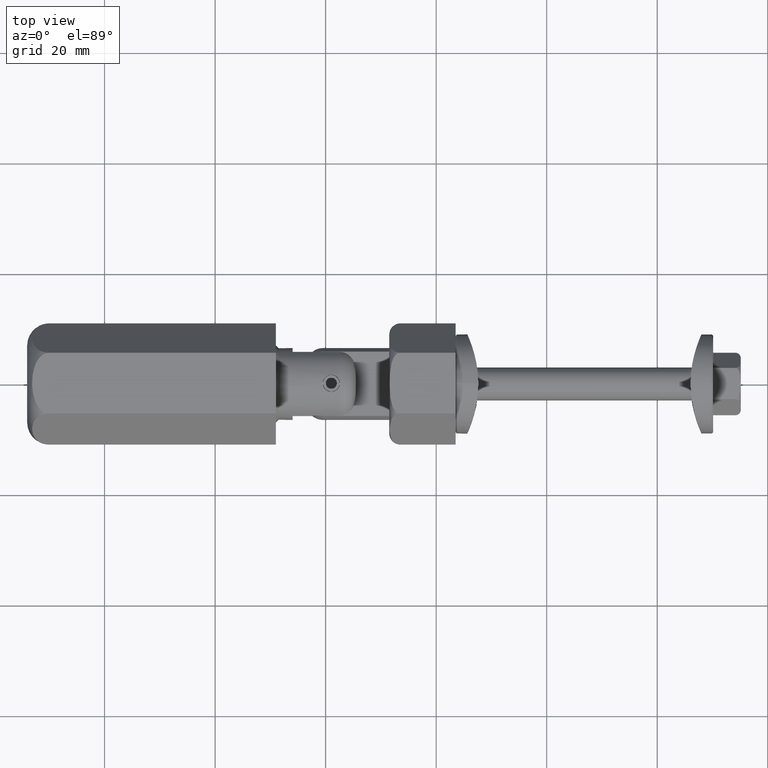
[diagram: clean part render]
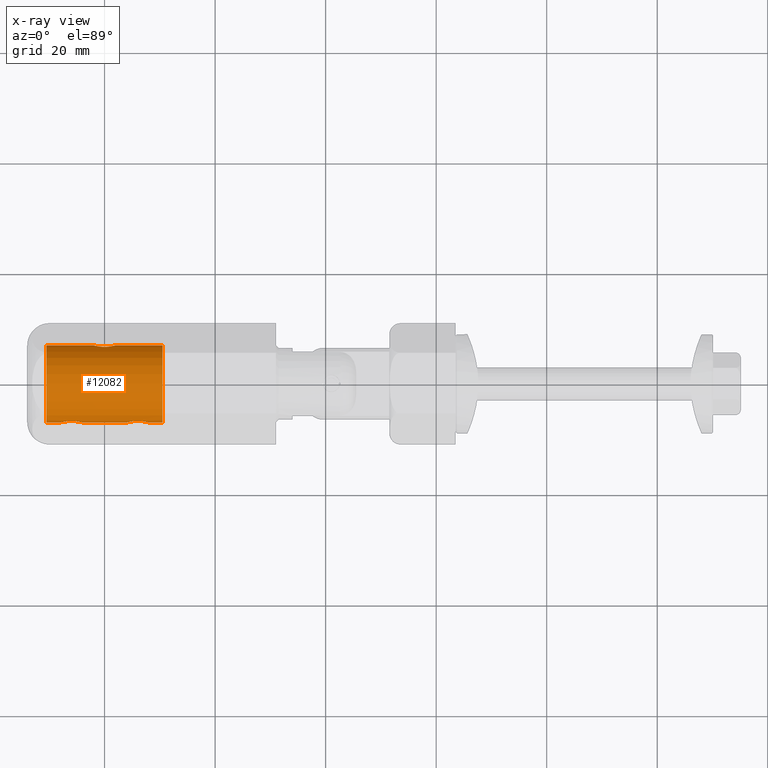
[diagram: x-ray — body ghosted, one internal face saturated and labeled with its STEP entity id]
A machine part, top view, then the same camera in x-ray: the body is ghosted and one INTERNAL B-rep face — a face not visible from any outside direction — is saturated and labeled: STEP entity #12082.
In plain terms, the highlighted cylindrical surface (bore or boss wall) has radius 7 mm, axis along (-1, -0, -0).
Its self-contained STEP definition (entity closure, byte-faithful):
#64 = B_SPLINE_CURVE_WITH_KNOTS ( 'NONE', 3,
 ( #16573, #13607, #16702, #3717, #13855, #8077, #13798, #3780, #863, #12421, #2318, #9523, #15254, #10981, #18156, #5249, #5180, #15315, #6629, #6691, #16034, #11616, #10302, #14570, #2974, #17231, #4251, #17471, #1383, #15972, #8596, #11499, #4428, #17354, #8715, #186, #2844, #18668, #14510, #11675, #13065, #7166, #14328, #7385, #15851, #8834, #7224, #1623, #2785, #8774, #7329, #4489, #17289, #5947, #12880, #15910, #8653, #5712 ),
 .UNSPECIFIED., .T., .F.,
 ( 4, 2, 2, 2, 2, 2, 2, 2, 2, 2, 2, 2, 2, 2, 2, 2, 2, 2, 2, 2, 2, 2, 2, 2, 2, 2, 2, 2, 4 ),
 ( 0.000000000000000000, 0.0004126742208551922885, 0.0008253484417103845771, 0.001238022662565576920, 0.001650696883420769154, 0.002476045325131153840, 0.002888719545986345640, 0.003301393766841537875, 0.003714067987696729242, 0.004126742208551920608, 0.004952090650262305077, 0.005364764871117496878, 0.005777439091972688678, 0.006190113312827882214, 0.006602787533683074014, 0.007428135975393458483, 0.007840810196248651151, 0.008253484417103842952, 0.008666158637959036487, 0.009078832858814228288, 0.009491507079669420088, 0.009904181300524611889, 0.01031685552137980542, 0.01072952974223499722, 0.01155487818394537909, 0.01196755240480057263, 0.01238022662565576443, 0.01279290084651095796, 0.01320557506736614803 ),
 .UNSPECIFIED. ) ;
#186 = CARTESIAN_POINT ( 'NONE',  ( 1.580987759049625296, 6.861527820141791523, -1.388976802186388859 ) ) ;
#247 = CARTESIAN_POINT ( 'NONE',  ( 3.913742813618505512, -6.995841922069899077, 0.2765614229878917141 ) ) ;
#367 = CARTESIAN_POINT ( 'NONE',  ( -7.054102473945778051, -6.759331466220759310, -1.821434604291044090 ) ) ;
#624 = EDGE_LOOP ( 'NONE', ( #5819 ) ) ;
#863 = CARTESIAN_POINT ( 'NONE',  ( -1.388839195446964991, 6.819827703537177044, 1.581028500071543608 ) ) ;
#1195 = CARTESIAN_POINT ( 'NONE',  ( 6.547049372306511295, -6.698588725198423965, -2.032168410949078741 ) ) ;
#1223 = CARTESIAN_POINT ( 'NONE',  ( 11.00000000000000000, 0.000000000000000000, 0.000000000000000000 ) ) ;
#1251 = CARTESIAN_POINT ( 'NONE',  ( 4.166720277408425765, -6.923910792502629086, 1.060908720620473256 ) ) ;
#1313 = CARTESIAN_POINT ( 'NONE',  ( -7.281739775913448121, -6.798550337963386703, -1.669101312122433400 ) ) ;
#1372 = CARTESIAN_POINT ( 'NONE',  ( 5.067132589589898650, -6.741251321833793497, 1.886406131919154960 ) ) ;
#1375 = CARTESIAN_POINT ( 'NONE',  ( -8.099909716981475327, -6.999972915099663240, -0.1392387535875164450 ) ) ;
#1383 = CARTESIAN_POINT ( 'NONE',  ( -0.1384541635934272708, 6.677593114946374087, -2.099940521796471948 ) ) ;
#1507 = B_SPLINE_CURVE_WITH_KNOTS ( 'NONE', 3,
 ( #15722, #12748, #5524, #4546, #8519, #5996, #4180, #8587, #18660, #7441, #2776, #10047, #5580, #9989, #9867, #16090, #247, #17223, #11374, #1251, #2650, #15603, #15779, #15660, #1372, #12690, #2715, #18606, #11485, #9928, #2834, #4240, #17099, #11434, #8460, #7096, #14314, #2594, #12926, #14199, #17163, #7040, #14626, #10355, #11317, #17526, #11258, #18487, #12808, #6975, #17039, #4063, #14260, #8405, #1195, #18549, #7697, #3331 ),
 .UNSPECIFIED., .T., .F.,
 ( 4, 2, 2, 2, 2, 2, 2, 2, 2, 2, 2, 2, 2, 2, 2, 2, 2, 2, 2, 2, 2, 2, 2, 2, 2, 2, 2, 2, 4 ),
 ( 0.000000000000000000, 0.0004126742208551886022, 0.0008253484417103772045, 0.001238022662565565861, 0.001650696883420754409, 0.002476045325131133023, 0.002888719545986322655, 0.003301393766841512287, 0.003714067987696701486, 0.004126742208551891118, 0.004952090650262271250, 0.005364764871117462183, 0.005777439091972653117, 0.006190113312827844917, 0.006602787533683036718, 0.007428135975393417717, 0.007840810196248609518, 0.008253484417103799584, 0.008666158637958993119, 0.009078832858814184920, 0.009491507079669374985, 0.009904181300524566786, 0.01031685552137975859, 0.01072952974223495039, 0.01155487818394533052, 0.01196755240480052405, 0.01238022662565571586, 0.01279290084651090592, 0.01320557506736609946 ),
 .UNSPECIFIED. ) ;
#1623 = CARTESIAN_POINT ( 'NONE',  ( 1.834030624333711668, 6.924122110894418647, 1.058980833297288759 ) ) ;
#1879 = CARTESIAN_POINT ( 'NONE',  ( -3.913478292464586339, -6.995920943411765514, -0.2747175000719830340 ) ) ;
#1968 = DIRECTION ( 'NONE',  ( 0.000000000000000000, 0.000000000000000000, -1.000000000000000000 ) ) ;
#2013 = CARTESIAN_POINT ( 'NONE',  ( -4.165969375666293217, -6.924122110894418647, -1.058980833297288315 ) ) ;
#2109 = AXIS2_PLACEMENT_3D ( 'NONE', #1223, #12776, #12597 ) ;
#2318 = CARTESIAN_POINT ( 'NONE',  ( -1.833738873039429507, 6.924046632502711240, 1.059309639716422557 ) ) ;
#2331 = EDGE_CURVE ( 'NONE', #12857, #12857, #10073, .T. ) ;
#2594 = CARTESIAN_POINT ( 'NONE',  ( 7.820401375943274225, -6.920872669533395971, 1.055791643321307260 ) ) ;
#2650 = CARTESIAN_POINT ( 'NONE',  ( 4.321485710884906517, -6.882702840316381021, 1.291404877913019167 ) ) ;
#2688 = EDGE_LOOP ( 'NONE', ( #16937 ) ) ;
#2712 = ORIENTED_EDGE ( 'NONE', *, *, #3806, .T. ) ;
#2715 = CARTESIAN_POINT ( 'NONE',  ( 5.451066889083135969, -6.698732829926070664, 2.031696179806510294 ) ) ;
#2776 = CARTESIAN_POINT ( 'NONE',  ( 4.166261126960574934, -6.924046632502710352, -1.059309639716417228 ) ) ;
#2785 = CARTESIAN_POINT ( 'NONE',  ( 1.677871059443381663, 6.882583350373726816, 1.291853353502421697 ) ) ;
#2807 = FACE_OUTER_BOUND ( 'NONE', #10565, .T. ) ;
#2820 = CARTESIAN_POINT ( 'NONE',  ( 0.000000000000000000, 6.677574409918619835, 2.100000000000000089 ) ) ;
#2834 = CARTESIAN_POINT ( 'NONE',  ( 6.551977781952515123, -6.695633180687197594, 2.044617356150431942 ) ) ;
#2837 = CARTESIAN_POINT ( 'NONE',  ( -8.032291352580037014, -6.979938631007708949, 0.5465776492337753867 ) ) ;
#2844 = CARTESIAN_POINT ( 'NONE',  ( 1.668743072410852513, 6.882537379490019092, -1.282128590245172228 ) ) ;
#2974 = CARTESIAN_POINT ( 'NONE',  ( -0.9328674104100991293, 6.741251321833790833, -1.886406131919161400 ) ) ;
#3148 = CARTESIAN_POINT ( 'NONE',  ( -6.000000000000000888, -6.677574409918621612, -2.099999999999993427 ) ) ;
#3271 = CARTESIAN_POINT ( 'NONE',  ( -8.086257186381498485, -6.995841922069899965, 0.2765614229878900487 ) ) ;
#3289 = CARTESIAN_POINT ( 'NONE',  ( -10.49999999999999822, 0.000000000000000000, 0.000000000000000000 ) ) ;
#3331 = CARTESIAN_POINT ( 'NONE',  ( 6.000000000000000000, -6.677574409918622500, -2.099999999999992095 ) ) ;
#3401 = CARTESIAN_POINT ( 'NONE',  ( -3.968060145951508577, -6.979836189706141170, 0.5477865613094993202 ) ) ;
#3531 = CARTESIAN_POINT ( 'NONE',  ( -5.860393906624878468, -6.677574409918621612, -2.099999999999994316 ) ) ;
#3717 = CARTESIAN_POINT ( 'NONE',  ( -0.5461640083738057427, 6.698523130148839932, 2.032383107415891565 ) ) ;
#3780 = CARTESIAN_POINT ( 'NONE',  ( -1.281739775913451451, 6.798550337963385815, 1.669101312122439174 ) ) ;
#3806 = EDGE_CURVE ( 'NONE', #6564, #6564, #10963, .T. ) ;
#4063 = CARTESIAN_POINT ( 'NONE',  ( 7.054460413041963918, -6.759387153196886544, -1.821229746319744214 ) ) ;
#4180 = CARTESIAN_POINT ( 'NONE',  ( 4.945897526054222837, -6.759331466220758422, -1.821434604291042980 ) ) ;
#4240 = CARTESIAN_POINT ( 'NONE',  ( 6.931730404932903156, -6.741092463548766567, 1.886972006611055352 ) ) ;
#4251 = CARTESIAN_POINT ( 'NONE',  ( -0.5489331109168636980, 6.698732829926068000, -2.031696179806514735 ) ) ;
#4309 = CARTESIAN_POINT ( 'NONE',  ( -7.677539340235308707, -6.882502496805263270, -1.292270667219473035 ) ) ;
#4428 = CARTESIAN_POINT ( 'NONE',  ( 1.054614965601925469, 6.759414880206073839, -1.821119944981276051 ) ) ;
#4489 = CARTESIAN_POINT ( 'NONE',  ( 1.054460413041965250, 6.759387153196884768, 1.821229746319750875 ) ) ;
#4546 = CARTESIAN_POINT ( 'NONE',  ( 5.453835991626197810, -6.698523130148844373, -2.032383107415884904 ) ) ;
#4742 = CARTESIAN_POINT ( 'NONE',  ( -5.725806950029170395, -6.677537183880286165, 2.100118371269690698 ) ) ;
#4804 = CARTESIAN_POINT ( 'NONE',  ( -3.967369288221169299, -6.980037580193778624, -0.5453942889284638662 ) ) ;
#4931 = CARTESIAN_POINT ( 'NONE',  ( -4.008013125288417910, -6.968169911155557728, 0.6791295441243295761 ) ) ;
#5004 = CARTESIAN_POINT ( 'NONE',  ( -5.318888449927635875, -6.711044336603226412, -1.991205123072984806 ) ) ;
#5180 = CARTESIAN_POINT ( 'NONE',  ( -2.086257186381502038, 6.995841922069899965, -0.2765614229878923802 ) ) ;
#5249 = CARTESIAN_POINT ( 'NONE',  ( -2.100089391378389347, 7.000026817408323332, -0.1365020080210981035 ) ) ;
#5524 = CARTESIAN_POINT ( 'NONE',  ( 5.723292098759246826, -6.681952129707695143, -2.086218818039787148 ) ) ;
#5580 = CARTESIAN_POINT ( 'NONE',  ( 3.967908700146568268, -6.979879823518936099, -0.5475077828909575839 ) ) ;
#5646 = CARTESIAN_POINT ( 'NONE',  ( -5.448022218047483989, -6.695633180687199371, 2.044617356150433274 ) ) ;
#5712 = CARTESIAN_POINT ( 'NONE',  ( -5.421010862427522170E-17, 6.677574409918619835, 2.100000000000000089 ) ) ;
#5722 = CARTESIAN_POINT ( 'NONE',  ( 10.49999999999999822, 0.000000000000000000, 0.000000000000000000 ) ) ;
#5819 = ORIENTED_EDGE ( 'NONE', *, *, #16674, .T. ) ;
#5947 = CARTESIAN_POINT ( 'NONE',  ( 0.6811115500723706750, 6.711044336603225524, 1.991205123072990357 ) ) ;
#5996 = CARTESIAN_POINT ( 'NONE',  ( 5.066177455833113186, -6.741375497718145482, -1.885969007355515537 ) ) ;
#6065 = CARTESIAN_POINT ( 'NONE',  ( -8.032091299853432176, -6.979879823518932547, -0.5475077828909588051 ) ) ;
#6564 = VERTEX_POINT ( 'NONE', #11078 ) ;
#6629 = CARTESIAN_POINT ( 'NONE',  ( -1.992370873320147728, 6.968281583516250599, -0.6779150144627420493 ) ) ;
#6691 = CARTESIAN_POINT ( 'NONE',  ( -1.833279722591579119, 6.923910792502629086, -1.060908720620477252 ) ) ;
#6975 = CARTESIAN_POINT ( 'NONE',  ( 7.389167496165471860, -6.819894566859789009, -1.580742788174470670 ) ) ;
#7004 = CARTESIAN_POINT ( 'NONE',  ( -6.000000000000000000, -6.677574409918621612, -2.099999999999993427 ) ) ;
#7040 = CARTESIAN_POINT ( 'NONE',  ( 8.085965238734301508, -6.995754758556704367, 0.2785654501442211828 ) ) ;
#7096 = CARTESIAN_POINT ( 'NONE',  ( 7.580987759049617303, -6.861527820141792411, 1.388976802186387971 ) ) ;
#7100 = CARTESIAN_POINT ( 'NONE',  ( -4.945385034398080748, -6.759414880206078280, 1.821119944981272054 ) ) ;
#7158 = CARTESIAN_POINT ( 'NONE',  ( -6.276707901240754950, -6.681952129707695143, -2.086218818039788037 ) ) ;
#7166 = CARTESIAN_POINT ( 'NONE',  ( 2.085965238734308169, 6.995754758556705255, -0.2785654501442186848 ) ) ;
#7224 = CARTESIAN_POINT ( 'NONE',  ( 1.991792245267931971, 6.968119259685876976, 0.6793679678655472065 ) ) ;
#7329 = CARTESIAN_POINT ( 'NONE',  ( 1.282117231908432187, 6.798621369107634926, 1.668813936661602604 ) ) ;
#7385 = CARTESIAN_POINT ( 'NONE',  ( 2.100037816497455356, 7.000011344948850578, 0.1378475233690338031 ) ) ;
#7441 = CARTESIAN_POINT ( 'NONE',  ( 4.322460659764697510, -6.882502496805258829, -1.292270667219473035 ) ) ;
#7506 = CARTESIAN_POINT ( 'NONE',  ( -7.387722743610349418, -6.819591003532936568, 1.582090320187760746 ) ) ;
#7566 = CARTESIAN_POINT ( 'NONE',  ( -7.678514289115095259, -6.882702840316382797, 1.291404877913020499 ) ) ;
#7697 = CARTESIAN_POINT ( 'NONE',  ( 6.139606093375124196, -6.677574409918623388, -2.099999999999992983 ) ) ;
#7700 = CARTESIAN_POINT ( 'NONE',  ( -4.331256927589153705, -6.882537379490016427, 1.282128590245168898 ) ) ;
#7766 = CARTESIAN_POINT ( 'NONE',  ( -4.179598624056727552, -6.920872669533395083, 1.055791643321302820 ) ) ;
#7785 = FACE_BOUND ( 'NONE', #624, .T. ) ;
#7827 = CARTESIAN_POINT ( 'NONE',  ( -5.065685123534970913, -6.741449950314553519, -1.885700532271817664 ) ) ;
#7935 = CIRCLE ( 'NONE', #11356, 7.000000000000000000 ) ;
#8046 = AXIS2_PLACEMENT_3D ( 'NONE', #5722, #15803, #14645 ) ;
#8077 = CARTESIAN_POINT ( 'NONE',  ( -0.9338225441668903670, 6.741375497718142817, 1.885969007355523752 ) ) ;
#8405 = CARTESIAN_POINT ( 'NONE',  ( 6.681111550072365013, -6.711044336603223748, -1.991205123072982586 ) ) ;
#8460 = CARTESIAN_POINT ( 'NONE',  ( 7.387073078795813430, -6.819458443178253226, 1.582658246544896397 ) ) ;
#8519 = CARTESIAN_POINT ( 'NONE',  ( 5.320050044645565634, -6.710920279591074511, -1.991625391210247731 ) ) ;
#8587 = CARTESIAN_POINT ( 'NONE',  ( 4.718260224086554544, -6.798550337963387591, -1.669101312122432956 ) ) ;
#8589 = CARTESIAN_POINT ( 'NONE',  ( -7.388839195446962549, -6.819827703537179708, -1.581028500071539611 ) ) ;
#8596 = CARTESIAN_POINT ( 'NONE',  ( 0.5519777819525226725, 6.695633180687202035, -2.044617356150437271 ) ) ;
#8653 = CARTESIAN_POINT ( 'NONE',  ( 0.1396060933751213928, 6.677574409918622500, 2.100000000000000533 ) ) ;
#8715 = CARTESIAN_POINT ( 'NONE',  ( 1.387073078795818981, 6.819458443178254115, -1.582658246544897951 ) ) ;
#8774 = CARTESIAN_POINT ( 'NONE',  ( 1.389167496165476967, 6.819894566859787233, 1.580742788174476221 ) ) ;
#8834 = CARTESIAN_POINT ( 'NONE',  ( 2.032630711778836030, 6.980037580193776847, 0.5453942889284653095 ) ) ;
#8888 = CARTESIAN_POINT ( 'NONE',  ( -7.992370873320142621, -6.968281583516251487, 0.6779150144627383856 ) ) ;
#8949 = CARTESIAN_POINT ( 'NONE',  ( -6.932867410410098685, -6.741251321833791721, 1.886406131919154738 ) ) ;
#9012 = CARTESIAN_POINT ( 'NONE',  ( -6.277815526606130625, -6.681981400250368353, 2.086129300996892422 ) ) ;
#9274 = CARTESIAN_POINT ( 'NONE',  ( -3.899962183502552637, -7.000011344948850578, -0.1378475233690331647 ) ) ;
#9339 = CARTESIAN_POINT ( 'NONE',  ( -4.612926921204187458, -6.819458443178253226, 1.582658246544895064 ) ) ;
#9523 = CARTESIAN_POINT ( 'NONE',  ( -1.991305647251499389, 6.967980629954404037, 0.6807243282322894551 ) ) ;
#9528 = EDGE_CURVE ( 'NONE', #11306, #11306, #64, .T. ) ;
#9867 = CARTESIAN_POINT ( 'NONE',  ( 3.900090283018523785, -6.999972915099665904, -0.1392387535875160842 ) ) ;
#9928 = CARTESIAN_POINT ( 'NONE',  ( 6.274193049970834046, -6.677537183880287053, 2.100118371269692474 ) ) ;
#9989 = CARTESIAN_POINT ( 'NONE',  ( 3.913625261481289197, -6.995876417530238811, -0.2760439706589809528 ) ) ;
#9992 = CARTESIAN_POINT ( 'NONE',  ( -7.991305647251489397, -6.967980629954403149, -0.6807243282322875677 ) ) ;
#10047 = CARTESIAN_POINT ( 'NONE',  ( 4.008694352748508827, -6.967980629954405813, -0.6807243282322863465 ) ) ;
#10050 = CARTESIAN_POINT ( 'NONE',  ( -7.833738873039423289, -6.924046632502709464, -1.059309639716419449 ) ) ;
#10073 = B_SPLINE_CURVE_WITH_KNOTS ( 'NONE', 3,
 ( #3148, #13238, #7158, #14690, #14750, #11926, #367, #1313, #8589, #4309, #10050, #9992, #6065, #14381, #1375, #17529, #3271, #2837, #8888, #11488, #7566, #7506, #12929, #17594, #8949, #16092, #17656, #9012, #13363, #4742, #5646, #15725, #7100, #17165, #9339, #10681, #7700, #7766, #14814, #4931, #3401, #10805, #13421, #9274, #1879, #4804, #16457, #2013, #12123, #12254, #14880, #11995, #7827, #5004, #15005, #16395, #3531, #10741 ),
 .UNSPECIFIED., .T., .F.,
 ( 4, 2, 2, 2, 2, 2, 2, 2, 2, 2, 2, 2, 2, 2, 2, 2, 2, 2, 2, 2, 2, 2, 2, 2, 2, 2, 2, 2, 4 ),
 ( 0.000000000000000000, 0.0004126742208551906622, 0.0008253484417103813245, 0.001238022662565571932, 0.001650696883420762649, 0.002476045325131142130, 0.002888719545986332196, 0.003301393766841521828, 0.003714067987696711461, 0.004126742208551901527, 0.004952090650262280791, 0.005364764871117470857, 0.005777439091972661790, 0.006190113312827852723, 0.006602787533683043657, 0.007428135975393424656, 0.007840810196248614722, 0.008253484417103806522, 0.008666158637958996588, 0.009078832858814186654, 0.009491507079669378455, 0.009904181300524568521, 0.01031685552137975859, 0.01072952974223495039, 0.01155487818394533225, 0.01196755240480052405, 0.01238022662565571759, 0.01279290084651090939, 0.01320557506736610119 ),
 .UNSPECIFIED. ) ;
#10302 = CARTESIAN_POINT ( 'NONE',  ( -1.282575759818664451, 6.798714871150503214, -1.668422950748254641 ) ) ;
#10355 = CARTESIAN_POINT ( 'NONE',  ( 8.100037816497447807, -7.000011344948851466, -0.1378475233690319157 ) ) ;
#10445 = ORIENTED_EDGE ( 'NONE', *, *, #18308, .T. ) ;
#10565 = EDGE_LOOP ( 'NONE', ( #2712 ) ) ;
#10638 = DIRECTION ( 'NONE',  ( 1.000000000000000000, -0.000000000000000000, -0.000000000000000000 ) ) ;
#10681 = CARTESIAN_POINT ( 'NONE',  ( -4.419012240950379145, -6.861527820141795964, 1.388976802186384640 ) ) ;
#10741 = CARTESIAN_POINT ( 'NONE',  ( -6.000000000000000888, -6.677574409918621612, -2.099999999999993427 ) ) ;
#10805 = CARTESIAN_POINT ( 'NONE',  ( -3.914034761265700268, -6.995754758556705255, 0.2785654501442183517 ) ) ;
#10963 = CIRCLE ( 'NONE', #8046, 7.000000000000000000 ) ;
#10981 = CARTESIAN_POINT ( 'NONE',  ( -2.086374738518715688, 6.995876417530237035, 0.2760439706589819520 ) ) ;
#11078 = CARTESIAN_POINT ( 'NONE',  ( 10.49999999999999822, 0.000000000000000000, -7.000000000000000000 ) ) ;
#11258 = CARTESIAN_POINT ( 'NONE',  ( 7.991792245267925310, -6.968119259685876976, -0.6793679678655463183 ) ) ;
#11306 = VERTEX_POINT ( 'NONE', #2820 ) ;
#11317 = CARTESIAN_POINT ( 'NONE',  ( 8.086521707535418102, -6.995920943411771731, -0.2747175000719819793 ) ) ;
#11356 = AXIS2_PLACEMENT_3D ( 'NONE', #3289, #10638, #1968 ) ;
#11374 = CARTESIAN_POINT ( 'NONE',  ( 4.007629126679858267, -6.968281583516251487, 0.6779150144627406060 ) ) ;
#11434 = CARTESIAN_POINT ( 'NONE',  ( 7.281828467040685204, -6.798570512688357326, 1.669013589149068055 ) ) ;
#11485 = CARTESIAN_POINT ( 'NONE',  ( 5.861545836406570231, -6.677593114946377639, 2.099940521796466619 ) ) ;
#11488 = CARTESIAN_POINT ( 'NONE',  ( -7.833279722591575123, -6.923910792502629974, 1.060908720620472367 ) ) ;
#11499 = CARTESIAN_POINT ( 'NONE',  ( 0.9317304049329089288, 6.741092463548765679, -1.886972006611058683 ) ) ;
#11616 = CARTESIAN_POINT ( 'NONE',  ( -1.387722743610353415, 6.819591003532936568, -1.582090320187766519 ) ) ;
#11675 = CARTESIAN_POINT ( 'NONE',  ( 1.991986874711585198, 6.968169911155557728, -0.6791295441243324627 ) ) ;
#11926 = CARTESIAN_POINT ( 'NONE',  ( -6.933822544166884150, -6.741375497718142817, -1.885969007355516647 ) ) ;
#11995 = CARTESIAN_POINT ( 'NONE',  ( -4.945539586958037859, -6.759387153196886544, -1.821229746319744658 ) ) ;
#12082 = ADVANCED_FACE ( 'NONE', ( #13636, #7785, #12966, #13172, #2807 ), #17930, .T. ) ;
#12100 = EDGE_LOOP ( 'NONE', ( #15296 ) ) ;
#12123 = CARTESIAN_POINT ( 'NONE',  ( -4.322128940556623888, -6.882583350373733033, -1.291853353502417256 ) ) ;
#12254 = CARTESIAN_POINT ( 'NONE',  ( -4.610832503834529028, -6.819894566859790785, -1.580742788174470892 ) ) ;
#12421 = CARTESIAN_POINT ( 'NONE',  ( -1.677539340235310705, 6.882502496805260606, 1.292270667219477476 ) ) ;
#12597 = DIRECTION ( 'NONE',  ( 0.000000000000000000, 0.000000000000000000, 1.000000000000000000 ) ) ;
#12649 = VERTEX_POINT ( 'NONE', #12916 ) ;
#12690 = CARTESIAN_POINT ( 'NONE',  ( 5.320132335858051675, -6.710920042696560728, 1.991619858105860619 ) ) ;
#12748 = CARTESIAN_POINT ( 'NONE',  ( 5.860393906624878468, -6.677574409918621612, -2.099999999999991207 ) ) ;
#12776 = DIRECTION ( 'NONE',  ( -1.000000000000000000, -0.000000000000000000, -0.000000000000000000 ) ) ;
#12808 = CARTESIAN_POINT ( 'NONE',  ( 7.677871059443378776, -6.882583350373733921, -1.291853353502417034 ) ) ;
#12857 = VERTEX_POINT ( 'NONE', #7004 ) ;
#12880 = CARTESIAN_POINT ( 'NONE',  ( 0.5470493723065145142, 6.698588725198425742, 2.032168410949085846 ) ) ;
#12916 = CARTESIAN_POINT ( 'NONE',  ( -10.49999999999999822, 0.000000000000000000, -7.000000000000000000 ) ) ;
#12926 = CARTESIAN_POINT ( 'NONE',  ( 7.885391892066941466, -6.938449595434287964, 0.9351609808230740839 ) ) ;
#12929 = CARTESIAN_POINT ( 'NONE',  ( -7.282575759818663563, -6.798714871150506767, 1.668422950748249090 ) ) ;
#12966 = FACE_BOUND ( 'NONE', #12100, .T. ) ;
#13065 = CARTESIAN_POINT ( 'NONE',  ( 2.031939854048501193, 6.979836189706141170, -0.5477865613095009856 ) ) ;
#13172 = FACE_OUTER_BOUND ( 'NONE', #16351, .T. ) ;
#13238 = CARTESIAN_POINT ( 'NONE',  ( -6.139606093375122420, -6.677574409918621612, -2.099999999999992983 ) ) ;
#13299 = VERTEX_POINT ( 'NONE', #14491 ) ;
#13363 = CARTESIAN_POINT ( 'NONE',  ( -6.138454163593429769, -6.677593114946377639, 2.099940521796465731 ) ) ;
#13421 = CARTESIAN_POINT ( 'NONE',  ( -3.900037973886521847, -6.999988607834431775, 0.1389973355850002701 ) ) ;
#13607 = CARTESIAN_POINT ( 'NONE',  ( -0.1396060933751220035, 6.677574409918618059, 2.100000000000000089 ) ) ;
#13636 = FACE_BOUND ( 'NONE', #2688, .T. ) ;
#13798 = CARTESIAN_POINT ( 'NONE',  ( -1.054102473945782270, 6.759331466220757534, 1.821434604291050308 ) ) ;
#13855 = CARTESIAN_POINT ( 'NONE',  ( -0.6799499553544379182, 6.710920279591073623, 1.991625391210255502 ) ) ;
#14199 = CARTESIAN_POINT ( 'NONE',  ( 7.991986874711580313, -6.968169911155554175, 0.6791295441243322406 ) ) ;
#14260 = CARTESIAN_POINT ( 'NONE',  ( 6.934314876465031752, -6.741449950314556183, -1.885700532271814778 ) ) ;
#14314 = CARTESIAN_POINT ( 'NONE',  ( 7.668743072410847184, -6.882537379490017315, 1.282128590245171562 ) ) ;
#14328 = CARTESIAN_POINT ( 'NONE',  ( 2.099962026113483482, 6.999988607834431775, -0.1389973355849998538 ) ) ;
#14381 = CARTESIAN_POINT ( 'NONE',  ( -8.086374738518708583, -6.995876417530237035, -0.2760439706589821185 ) ) ;
#14491 = CARTESIAN_POINT ( 'NONE',  ( 6.000000000000000000, -6.677574409918622500, -2.099999999999992095 ) ) ;
#14510 = CARTESIAN_POINT ( 'NONE',  ( 1.885391892066947239, 6.938449595434285300, -0.9351609808230747500 ) ) ;
#14570 = CARTESIAN_POINT ( 'NONE',  ( -1.055779176435703626, 6.759600061314561259, -1.820430183462876439 ) ) ;
#14626 = CARTESIAN_POINT ( 'NONE',  ( 8.099962026113477265, -6.999988607834436216, 0.1389973355849999093 ) ) ;
#14645 = DIRECTION ( 'NONE',  ( 0.000000000000000000, 0.000000000000000000, -1.000000000000000000 ) ) ;
#14690 = CARTESIAN_POINT ( 'NONE',  ( -6.546164008373803078, -6.698523130148840821, -2.032383107415884460 ) ) ;
#14750 = CARTESIAN_POINT ( 'NONE',  ( -6.679949955354436142, -6.710920279591075399, -1.991625391210248619 ) ) ;
#14814 = CARTESIAN_POINT ( 'NONE',  ( -4.114608107933059422, -6.938449595434287076, 0.9351609808230708643 ) ) ;
#14880 = CARTESIAN_POINT ( 'NONE',  ( -4.717882768091575585, -6.798621369107635815, -1.668813936661598829 ) ) ;
#15005 = CARTESIAN_POINT ( 'NONE',  ( -5.452950627693487817, -6.698588725198423077, -2.032168410949078297 ) ) ;
#15254 = CARTESIAN_POINT ( 'NONE',  ( -2.032091299853440169, 6.979879823518931659, 0.5475077828909599154 ) ) ;
#15296 = ORIENTED_EDGE ( 'NONE', *, *, #9528, .T. ) ;
#15315 = CARTESIAN_POINT ( 'NONE',  ( -2.032291352580044119, 6.979938631007711614, -0.5465776492337782733 ) ) ;
#15603 = CARTESIAN_POINT ( 'NONE',  ( 4.612277256389651470, -6.819591003532936568, 1.582090320187762300 ) ) ;
#15660 = CARTESIAN_POINT ( 'NONE',  ( 4.944220823564299039, -6.759600061314564812, 1.820430183462871776 ) ) ;
#15722 = CARTESIAN_POINT ( 'NONE',  ( 6.000000000000000000, -6.677574409918622500, -2.099999999999992095 ) ) ;
#15725 = CARTESIAN_POINT ( 'NONE',  ( -5.068269595067096844, -6.741092463548767455, 1.886972006611054908 ) ) ;
#15779 = CARTESIAN_POINT ( 'NONE',  ( 4.717424240181339101, -6.798714871150505878, 1.668422950748250866 ) ) ;
#15803 = DIRECTION ( 'NONE',  ( -1.000000000000000000, 0.000000000000000000, 0.000000000000000000 ) ) ;
#15851 = CARTESIAN_POINT ( 'NONE',  ( 2.086521707535420767, 6.995920943411766402, 0.2747175000719844773 ) ) ;
#15910 = CARTESIAN_POINT ( 'NONE',  ( 0.2769288080939470986, 6.681954613611709171, 2.086212333739772884 ) ) ;
#15972 = CARTESIAN_POINT ( 'NONE',  ( 0.2741930499708331581, 6.677537183880285276, -2.100118371269697359 ) ) ;
#16034 = CARTESIAN_POINT ( 'NONE',  ( -1.678514289115097480, 6.882702840316380133, -1.291404877913023830 ) ) ;
#16090 = CARTESIAN_POINT ( 'NONE',  ( 3.899910608621614649, -7.000026817408324220, 0.1365020080210979092 ) ) ;
#16092 = CARTESIAN_POINT ( 'NONE',  ( -6.679867664141948325, -6.710920042696562504, 1.991619858105859509 ) ) ;
#16351 = EDGE_LOOP ( 'NONE', ( #10445 ) ) ;
#16395 = CARTESIAN_POINT ( 'NONE',  ( -5.723071191906051070, -6.681954613611707394, -2.086212333739766223 ) ) ;
#16457 = CARTESIAN_POINT ( 'NONE',  ( -4.008207754732074690, -6.968119259685877864, -0.6793679678655456522 ) ) ;
#16573 = CARTESIAN_POINT ( 'NONE',  ( -5.421010862427522170E-17, 6.677574409918619835, 2.100000000000000089 ) ) ;
#16674 = EDGE_CURVE ( 'NONE', #13299, #13299, #1507, .T. ) ;
#16702 = CARTESIAN_POINT ( 'NONE',  ( -0.2767079012407565042, 6.681952129707694255, 2.086218818039794254 ) ) ;
#16937 = ORIENTED_EDGE ( 'NONE', *, *, #2331, .T. ) ;
#17039 = CARTESIAN_POINT ( 'NONE',  ( 7.282117231908429744, -6.798621369107635815, -1.668813936661598163 ) ) ;
#17099 = CARTESIAN_POINT ( 'NONE',  ( 7.054614965601921917, -6.759414880206080056, 1.821119944981273830 ) ) ;
#17163 = CARTESIAN_POINT ( 'NONE',  ( 8.031939854048495420, -6.979836189706142946, 0.5477865613095009856 ) ) ;
#17165 = CARTESIAN_POINT ( 'NONE',  ( -4.718171532959313907, -6.798570512688359990, 1.669013589149066945 ) ) ;
#17223 = CARTESIAN_POINT ( 'NONE',  ( 3.967708647419962542, -6.979938631007711614, 0.5465776492337757198 ) ) ;
#17231 = CARTESIAN_POINT ( 'NONE',  ( -0.6798676641419484357, 6.710920042696562504, -1.991619858105865948 ) ) ;
#17289 = CARTESIAN_POINT ( 'NONE',  ( 0.9343148764650356375, 6.741449950314554407, 1.885700532271822327 ) ) ;
#17354 = CARTESIAN_POINT ( 'NONE',  ( 1.281828467040692754, 6.798570512688357326, -1.669013589149070498 ) ) ;
#17471 = CARTESIAN_POINT ( 'NONE',  ( -0.2778155266061311801, 6.681981400250366576, -2.086129300996898195 ) ) ;
#17526 = CARTESIAN_POINT ( 'NONE',  ( 8.032630711778830701, -6.980037580193777735, -0.5453942889284628670 ) ) ;
#17529 = CARTESIAN_POINT ( 'NONE',  ( -8.100089391378386239, -7.000026817408324220, 0.1365020080210969655 ) ) ;
#17594 = CARTESIAN_POINT ( 'NONE',  ( -7.055779176435702738, -6.759600061314563924, 1.820430183462870222 ) ) ;
#17656 = CARTESIAN_POINT ( 'NONE',  ( -6.548933110916860478, -6.698732829926071553, 2.031696179806508518 ) ) ;
#17930 = CYLINDRICAL_SURFACE ( 'NONE', #2109, 7.000000000000000000 ) ;
#18156 = CARTESIAN_POINT ( 'NONE',  ( -2.099909716981481544, 6.999972915099667681, 0.1392387535875159454 ) ) ;
#18308 = EDGE_CURVE ( 'NONE', #12649, #12649, #7935, .T. ) ;
#18487 = CARTESIAN_POINT ( 'NONE',  ( 7.834030624333706783, -6.924122110894421311, -1.058980833297286539 ) ) ;
#18549 = CARTESIAN_POINT ( 'NONE',  ( 6.276928808093952483, -6.681954613611711835, -2.086212333739765334 ) ) ;
#18606 = CARTESIAN_POINT ( 'NONE',  ( 5.722184473393866710, -6.681981400250369241, 2.086129300996894198 ) ) ;
#18660 = CARTESIAN_POINT ( 'NONE',  ( 4.611160804553041004, -6.819827703537176156, -1.581028500071537835 ) ) ;
#18668 = CARTESIAN_POINT ( 'NONE',  ( 1.820401375943279332, 6.920872669533393307, -1.055791643321305262 ) ) ;